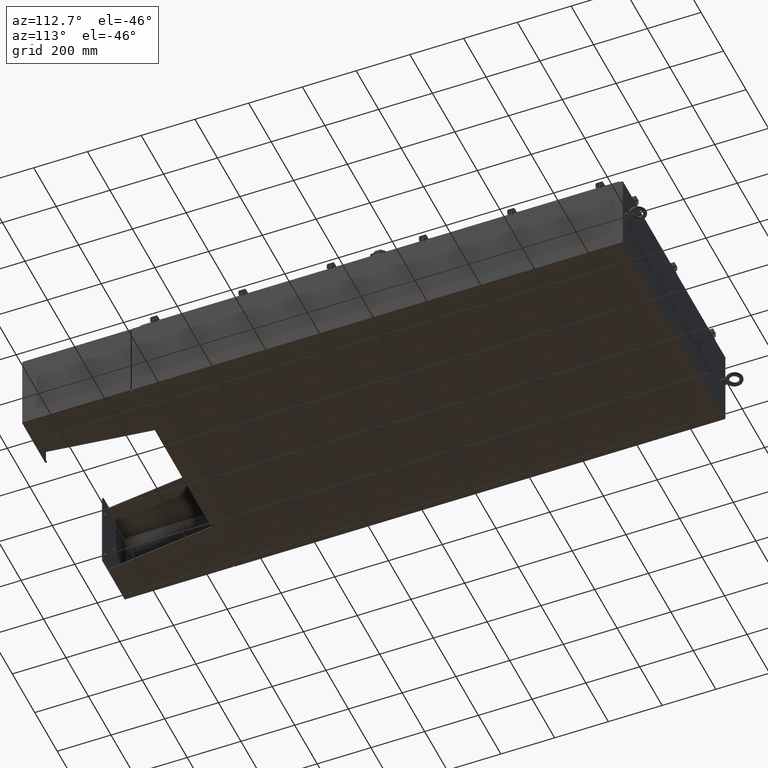
[diagram: clean part render]
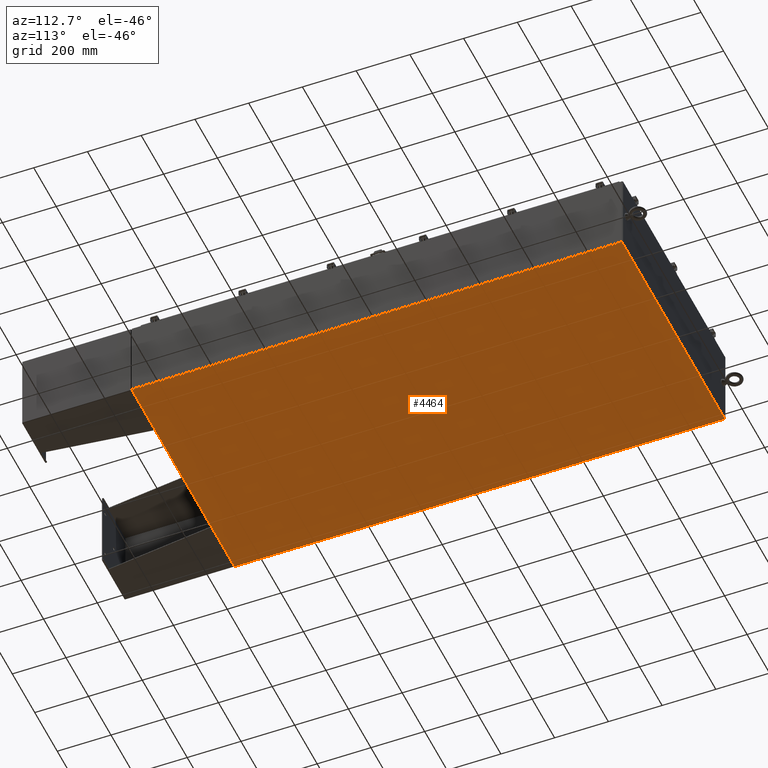
[diagram: same view with one face highlighted and labeled with its STEP entity id]
A machine part, auxiliary view. The second image highlights one B-rep face of the part: STEP entity #4464.
In plain terms, the highlighted planar face has unit normal (0, 0, -1).
Its self-contained STEP definition (entity closure, byte-faithful):
#3664 = VERTEX_POINT ( 'NONE', #19433 ) ;
#4043 = ORIENTED_EDGE ( 'NONE', *, *, #9218, .T. ) ;
#4464 = ADVANCED_FACE ( 'NONE', ( #68526 ), #22203, .T. ) ;
#9218 = EDGE_CURVE ( 'NONE', #12501, #44743, #31384, .T. ) ;
#12501 = VERTEX_POINT ( 'NONE', #44943 ) ;
#19421 = VECTOR ( 'NONE', #34573, 39.37007874015748100 ) ;
#19433 = CARTESIAN_POINT ( 'NONE',  ( -17.91229999999999500, -35.92530000000000000, -0.07469999999999994700 ) ) ;
#22203 = PLANE ( 'NONE',  #57893 ) ;
#24507 = CARTESIAN_POINT ( 'NONE',  ( 17.91230000000000500, -35.92529999999999300, -0.07470000000000000300 ) ) ;
#27843 = DIRECTION ( 'NONE',  ( -1.000000000000000000, -0.0000000000000000000, -0.0000000000000000000 ) ) ;
#29256 = CARTESIAN_POINT ( 'NONE',  ( 17.91230000000000500, 35.92530000000000700, -0.07469999999999885100 ) ) ;
#31384 = LINE ( 'NONE', #29256, #19421 ) ;
#34573 = DIRECTION ( 'NONE',  ( -0.0000000000000000000, -1.000000000000000000, -0.0000000000000000000 ) ) ;
#36005 = CARTESIAN_POINT ( 'NONE',  ( -17.99999999999999600, -35.92529999999999300, -0.07470000000000000300 ) ) ;
#37114 = EDGE_CURVE ( 'NONE', #3664, #44743, #39109, .T. ) ;
#37941 = DIRECTION ( 'NONE',  ( 0.0000000000000000000, 0.0000000000000000000, -1.000000000000000000 ) ) ;
#39109 = LINE ( 'NONE', #36005, #68944 ) ;
#42042 = DIRECTION ( 'NONE',  ( 1.000000000000000000, 0.0000000000000000000, 0.0000000000000000000 ) ) ;
#43423 = CARTESIAN_POINT ( 'NONE',  ( -17.91229999999999500, 35.92530000000000000, -0.07470000000000000300 ) ) ;
#44637 = CARTESIAN_POINT ( 'NONE',  ( 0.0000000000000000000, 0.0000000000000000000, -0.07470000000000000300 ) ) ;
#44743 = VERTEX_POINT ( 'NONE', #24507 ) ;
#44943 = CARTESIAN_POINT ( 'NONE',  ( 17.91230000000000500, 35.92530000000000000, -0.07469999999999885100 ) ) ;
#45349 = DIRECTION ( 'NONE',  ( -1.000000000000000000, 0.0000000000000000000, -0.0000000000000000000 ) ) ;
#46662 = CARTESIAN_POINT ( 'NONE',  ( -17.91229999999999500, -35.92530000000000000, -0.07469999999999994700 ) ) ;
#55325 = LINE ( 'NONE', #57550, #69254 ) ;
#57550 = CARTESIAN_POINT ( 'NONE',  ( -17.99999999999999600, 35.92530000000000000, -0.07470000000000000300 ) ) ;
#57893 = AXIS2_PLACEMENT_3D ( 'NONE', #44637, #37941, #45349 ) ;
#60110 = ORIENTED_EDGE ( 'NONE', *, *, #37114, .F. ) ;
#60648 = VECTOR ( 'NONE', #76044, 39.37007874015748100 ) ;
#64545 = VERTEX_POINT ( 'NONE', #43423 ) ;
#66500 = ORIENTED_EDGE ( 'NONE', *, *, #70526, .F. ) ;
#67290 = EDGE_LOOP ( 'NONE', ( #60110, #67777, #66500, #4043 ) ) ;
#67777 = ORIENTED_EDGE ( 'NONE', *, *, #71865, .T. ) ;
#68526 = FACE_OUTER_BOUND ( 'NONE', #67290, .T. ) ;
#68944 = VECTOR ( 'NONE', #42042, 39.37007874015748100 ) ;
#69254 = VECTOR ( 'NONE', #27843, 39.37007874015748100 ) ;
#70526 = EDGE_CURVE ( 'NONE', #12501, #64545, #55325, .T. ) ;
#71865 = EDGE_CURVE ( 'NONE', #3664, #64545, #76503, .T. ) ;
#76044 = DIRECTION ( 'NONE',  ( -0.0000000000000000000, 1.000000000000000000, -0.0000000000000000000 ) ) ;
#76503 = LINE ( 'NONE', #46662, #60648 ) ;